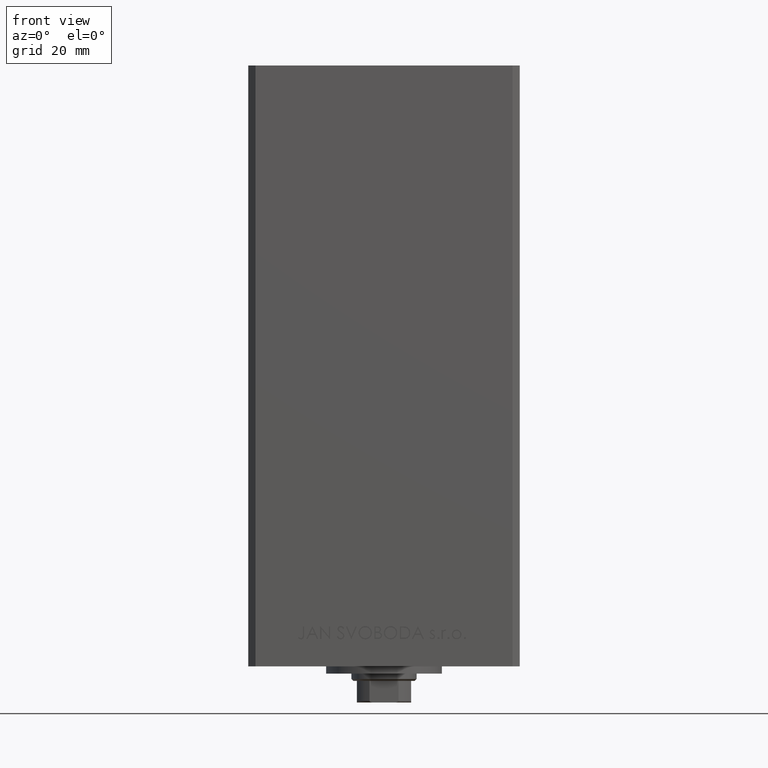
[diagram: clean part render]
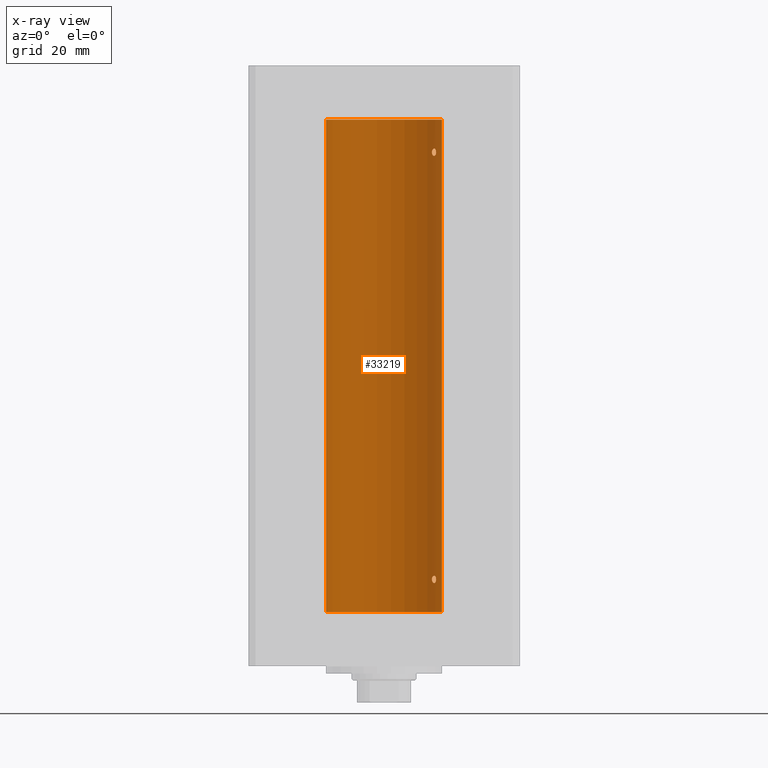
[diagram: x-ray — body ghosted, one internal face saturated and labeled with its STEP entity id]
A machine part, front view, then the same camera in x-ray: the body is ghosted and one INTERNAL B-rep face — a face not visible from any outside direction — is saturated and labeled: STEP entity #33219.
In plain terms, the highlighted cylindrical surface (partial cylindrical patch) has radius 16 mm, axis along (-0, -0, -1).
Its self-contained STEP definition (entity closure, byte-faithful):
#257 = CARTESIAN_POINT ( 'NONE',  ( 14.17516445690067606, 7.421373518623913590, 126.1736956655494453 ) ) ;
#260 = ORIENTED_EDGE ( 'NONE', *, *, #34260, .T. ) ;
#349 = CARTESIAN_POINT ( 'NONE',  ( 14.17516445690067428, 7.421373518623910037, 8.173695665549439937 ) ) ;
#935 = DIRECTION ( 'NONE',  ( -0.000000000000000000, -0.000000000000000000, -1.000000000000000000 ) ) ;
#1839 = CARTESIAN_POINT ( 'NONE',  ( 14.38749456993875953, 6.999999999998769873, 8.999999999999467093 ) ) ;
#2170 = ORIENTED_EDGE ( 'NONE', *, *, #10915, .F. ) ;
#2309 = CARTESIAN_POINT ( 'NONE',  ( 14.31615587311060445, 7.145052533203043232, 8.462698705274526390 ) ) ;
#2651 = CARTESIAN_POINT ( 'NONE',  ( 16.00000000000000000, 1.959434878635765131E-15, 136.0000000000000000 ) ) ;
#2856 = CARTESIAN_POINT ( 'NONE',  ( 13.32447566991143795, 8.857922402414491359, 127.5314381199038678 ) ) ;
#3999 = CARTESIAN_POINT ( 'NONE',  ( 14.11701305531884465, 7.531808851198022126, 126.1073667830906686 ) ) ;
#4734 = CARTESIAN_POINT ( 'NONE',  ( 14.38374727663543062, 7.007716049903079281, 126.8576079294365400 ) ) ;
#4819 = CARTESIAN_POINT ( 'NONE',  ( 13.22875655532295447, 8.999999999999998224, 8.999999999999994671 ) ) ;
#4921 = VERTEX_POINT ( 'NONE', #48324 ) ;
#4969 = CARTESIAN_POINT ( 'NONE',  ( 13.25010819131476048, 8.968783812673565947, 126.7171986622837636 ) ) ;
#5234 = AXIS2_PLACEMENT_3D ( 'NONE', #21053, #40233, #47472 ) ;
#5293 = CARTESIAN_POINT ( 'NONE',  ( 13.22875655532296157, 9.000000000000000000, 8.857026260935734641 ) ) ;
#6584 = CARTESIAN_POINT ( 'NONE',  ( 14.31678893103185679, 7.143775209822727845, 127.5347800480706724 ) ) ;
#6625 = ORIENTED_EDGE ( 'NONE', *, *, #8065, .F. ) ;
#6668 = DIRECTION ( 'NONE',  ( -1.000000000000000000, 0.000000000000000000, 0.000000000000000000 ) ) ;
#7133 = DIRECTION ( 'NONE',  ( -0.000000000000000000, -0.000000000000000000, -1.000000000000000000 ) ) ;
#7161 = CARTESIAN_POINT ( 'NONE',  ( -16.00000000000000000, 0.000000000000000000, 0.000000000000000000 ) ) ;
#7332 = CARTESIAN_POINT ( 'NONE',  ( 14.27601081693604357, 7.225489892961959981, 127.6464466749832383 ) ) ;
#7711 = CARTESIAN_POINT ( 'NONE',  ( 14.38749456993875775, 6.999999999998772537, 126.9999999999994742 ) ) ;
#8065 = EDGE_CURVE ( 'NONE', #20333, #22136, #37971, .T. ) ;
#8217 = CARTESIAN_POINT ( 'NONE',  ( 14.31615587311060445, 7.145052533203036127, 126.4626987052745193 ) ) ;
#9056 = CARTESIAN_POINT ( 'NONE',  ( 13.32447566991143439, 8.857922402414480700, 9.531438119903825168 ) ) ;
#9305 = CARTESIAN_POINT ( 'NONE',  ( 14.31678893103186390, 7.143775209822729622, 9.534780048070684799 ) ) ;
#9535 = CARTESIAN_POINT ( 'NONE',  ( 14.38749456993875953, 6.999999999998769873, 8.999999999999467093 ) ) ;
#10649 = DIRECTION ( 'NONE',  ( -0.000000000000000000, -0.000000000000000000, -1.000000000000000000 ) ) ;
#10714 = VERTEX_POINT ( 'NONE', #41489 ) ;
#10915 = EDGE_CURVE ( 'NONE', #40252, #10714, #29386, .T. ) ;
#11245 = ORIENTED_EDGE ( 'NONE', *, *, #23340, .F. ) ;
#11654 = ORIENTED_EDGE ( 'NONE', *, *, #36621, .F. ) ;
#11908 = VERTEX_POINT ( 'NONE', #7161 ) ;
#11958 = CARTESIAN_POINT ( 'NONE',  ( 13.32443414199768306, 8.857985377928109472, 126.4686058303161360 ) ) ;
#12137 = EDGE_LOOP ( 'NONE', ( #2170, #15397 ) ) ;
#12689 = CARTESIAN_POINT ( 'NONE',  ( 14.36932461189096522, 7.037242368448795915, 126.7207139776694333 ) ) ;
#13203 = CIRCLE ( 'NONE', #5234, 16.00000000000000000 ) ;
#13298 = CARTESIAN_POINT ( 'NONE',  ( 13.22875655532295447, 8.999999999999998224, 8.999999999999994671 ) ) ;
#15047 = VERTEX_POINT ( 'NONE', #39042 ) ;
#15397 = ORIENTED_EDGE ( 'NONE', *, *, #31723, .F. ) ;
#15454 = CARTESIAN_POINT ( 'NONE',  ( 14.27574973237575229, 7.225997637813494912, 126.3530782107463466 ) ) ;
#16269 = CARTESIAN_POINT ( 'NONE',  ( 13.37714181818049575, 8.778635597591465611, 8.359554766746297716 ) ) ;
#16517 = CARTESIAN_POINT ( 'NONE',  ( 13.92009581174526822, 7.889943515799717311, 7.998460909213807035 ) ) ;
#16543 = CARTESIAN_POINT ( 'NONE',  ( 14.37260515874679534, 7.030802976542521954, 9.282431798581109561 ) ) ;
#16693 = B_SPLINE_CURVE_WITH_KNOTS ( 'NONE', 3,
 ( #26277, #41486, #22786, #6584, #7332, #30257, #26512, #19051, #21798, #37002, #2856, #18052, #33254, #48457 ),
 .UNSPECIFIED., .F., .F.,
 ( 4, 2, 2, 2, 2, 2, 4 ),
 ( 0.003377516961122436958, 0.003798778705083865476, 0.004220040449045293560, 0.005062563936968100288, 0.005905087424890907016, 0.006326349168852314284, 0.006747610912813719816 ),
 .UNSPECIFIED. ) ;
#17026 = CARTESIAN_POINT ( 'NONE',  ( 14.12440581436493225, 7.519967855344579455, 9.916845667547992349 ) ) ;
#18052 = CARTESIAN_POINT ( 'NONE',  ( 13.25022586032983973, 8.968609469449800642, 127.2832896389628985 ) ) ;
#18139 = CARTESIAN_POINT ( 'NONE',  ( 0.000000000000000000, 0.000000000000000000, 136.0000000000000000 ) ) ;
#18720 = EDGE_CURVE ( 'NONE', #4921, #25609, #22767, .T. ) ;
#19051 = CARTESIAN_POINT ( 'NONE',  ( 13.70635209652260400, 8.259251269739737111, 127.9961002086728570 ) ) ;
#19205 = CARTESIAN_POINT ( 'NONE',  ( 14.35867515080208001, 7.058999333127632170, 126.6544211985381452 ) ) ;
#19694 = CARTESIAN_POINT ( 'NONE',  ( 14.38749456993875775, 6.999999999998772537, 126.9999999999994742 ) ) ;
#19876 = LINE ( 'NONE', #35065, #34275 ) ;
#20179 = CARTESIAN_POINT ( 'NONE',  ( 13.77746685470184218, 8.136441676695669756, 126.0017131429554667 ) ) ;
#20199 = CARTESIAN_POINT ( 'NONE',  ( 13.22875655532295802, 8.999999999999996447, 127.0000000000000000 ) ) ;
#20333 = VERTEX_POINT ( 'NONE', #20199 ) ;
#21053 = CARTESIAN_POINT ( 'NONE',  ( 0.000000000000000000, 0.000000000000000000, 0.000000000000000000 ) ) ;
#21500 = CARTESIAN_POINT ( 'NONE',  ( 14.35867515080208356, 7.058999333127636611, 8.654421198538130966 ) ) ;
#21798 = CARTESIAN_POINT ( 'NONE',  ( 13.55739033881264888, 8.499771822136688471, 127.9029833364133140 ) ) ;
#22136 = VERTEX_POINT ( 'NONE', #7711 ) ;
#22767 = CIRCLE ( 'NONE', #45857, 16.00000000000000000 ) ;
#22786 = CARTESIAN_POINT ( 'NONE',  ( 14.37260515874679001, 7.030802976542522842, 127.2824317985811149 ) ) ;
#23184 = VECTOR ( 'NONE', #7133, 1000.000000000000000 ) ;
#23295 = DIRECTION ( 'NONE',  ( -0.000000000000000000, 0.000000000000000000, 1.000000000000000000 ) ) ;
#23340 = EDGE_CURVE ( 'NONE', #15047, #11908, #13203, .T. ) ;
#23427 = CARTESIAN_POINT ( 'NONE',  ( 14.38749456993829767, 7.000000000000029310, 126.9292911095187577 ) ) ;
#23923 = CARTESIAN_POINT ( 'NONE',  ( 13.37714181818049752, 8.778635597591465611, 126.3595547667463137 ) ) ;
#24007 = CARTESIAN_POINT ( 'NONE',  ( 13.70633586603034715, 8.255576010093811590, 8.025328610501505366 ) ) ;
#24517 = CARTESIAN_POINT ( 'NONE',  ( 14.38749456993835807, 6.999999999999894307, 9.141106977037484427 ) ) ;
#25461 = EDGE_LOOP ( 'NONE', ( #6625, #11654 ) ) ;
#25609 = VERTEX_POINT ( 'NONE', #47741 ) ;
#26277 = CARTESIAN_POINT ( 'NONE',  ( 14.38749456993875775, 6.999999999998772537, 126.9999999999994742 ) ) ;
#26512 = CARTESIAN_POINT ( 'NONE',  ( 13.98853479819183043, 7.771757428685177160, 128.0036593920347059 ) ) ;
#27162 = CARTESIAN_POINT ( 'NONE',  ( 13.92009581174527000, 7.889943515799715534, 125.9984609092137617 ) ) ;
#27252 = CARTESIAN_POINT ( 'NONE',  ( 13.32443414199768839, 8.857985377928104143, 8.468605830316136007 ) ) ;
#27975 = CARTESIAN_POINT ( 'NONE',  ( 13.77746685470184040, 8.136441676695669756, 8.001713142955473757 ) ) ;
#29386 = B_SPLINE_CURVE_WITH_KNOTS ( 'NONE', 3,
 ( #4819, #5293, #35212, #27252, #16269, #42461, #35451, #24007, #27975, #16517, #46936, #34486, #349, #40182, #2309, #21500, #47670, #43696, #32946, #9535 ),
 .UNSPECIFIED., .F., .F.,
 ( 4, 2, 2, 2, 2, 2, 2, 2, 2, 4 ),
 ( 0.000000000000000000, 0.0004221896201403055413, 0.0008443792402806110826, 0.001266568860420916624, 0.001688758480561222165, 0.002110948100701527490, 0.002533137720841833248, 0.002955327340982138572, 0.003166422151052288633, 0.003377516961122438259 ),
 .UNSPECIFIED. ) ;
#29605 = CYLINDRICAL_SURFACE ( 'NONE', #39002, 16.00000000000000000 ) ;
#30257 = CARTESIAN_POINT ( 'NONE',  ( 14.12440581436493048, 7.519967855344577679, 127.9168456675479888 ) ) ;
#30905 = CARTESIAN_POINT ( 'NONE',  ( 13.22875655532295802, 8.999999999999996447, 127.0000000000000000 ) ) ;
#31563 = ORIENTED_EDGE ( 'NONE', *, *, #35165, .F. ) ;
#31723 = EDGE_CURVE ( 'NONE', #10714, #40252, #47966, .T. ) ;
#32241 = CARTESIAN_POINT ( 'NONE',  ( 13.98853479819183043, 7.771757428685174496, 10.00365939203466681 ) ) ;
#32946 = CARTESIAN_POINT ( 'NONE',  ( 14.38749456993828879, 7.000000000000026645, 8.929291109518763037 ) ) ;
#33219 = ADVANCED_FACE ( 'NONE', ( #44810, #36604, #48299 ), #29605, .F. ) ;
#33254 = CARTESIAN_POINT ( 'NONE',  ( 13.22875655532295625, 8.999999999999994671, 127.1426595155012933 ) ) ;
#34102 = ORIENTED_EDGE ( 'NONE', *, *, #18720, .T. ) ;
#34260 = EDGE_CURVE ( 'NONE', #25609, #11908, #19876, .T. ) ;
#34275 = VECTOR ( 'NONE', #935, 1000.000000000000000 ) ;
#34486 = CARTESIAN_POINT ( 'NONE',  ( 14.11701305531884287, 7.531808851198022126, 8.107366783090686368 ) ) ;
#34884 = CARTESIAN_POINT ( 'NONE',  ( 13.56526576050684341, 8.485384079562173554, 126.1169905381311054 ) ) ;
#35065 = CARTESIAN_POINT ( 'NONE',  ( -16.00000000000000000, 0.000000000000000000, 136.0000000000000000 ) ) ;
#35165 = EDGE_CURVE ( 'NONE', #4921, #15047, #40533, .T. ) ;
#35212 = CARTESIAN_POINT ( 'NONE',  ( 13.25010819131475159, 8.968783812673564171, 8.717198662283735189 ) ) ;
#35451 = CARTESIAN_POINT ( 'NONE',  ( 13.56526576050683452, 8.485384079562178883, 8.116990538131117816 ) ) ;
#35734 = CARTESIAN_POINT ( 'NONE',  ( 13.70635209652260222, 8.259251269739738888, 9.996100208672867637 ) ) ;
#35980 = CARTESIAN_POINT ( 'NONE',  ( 14.27601081693604712, 7.225489892961965310, 9.646446674983275571 ) ) ;
#36440 = CARTESIAN_POINT ( 'NONE',  ( 13.22875655532295447, 8.999999999999998224, 8.999999999999994671 ) ) ;
#36604 = FACE_BOUND ( 'NONE', #25461, .T. ) ;
#36621 = EDGE_CURVE ( 'NONE', #22136, #20333, #16693, .T. ) ;
#37002 = CARTESIAN_POINT ( 'NONE',  ( 13.37722806521492913, 8.778496895713761461, 127.6404922157021673 ) ) ;
#37971 = B_SPLINE_CURVE_WITH_KNOTS ( 'NONE', 3,
 ( #30905, #38144, #4969, #11958, #23923, #39111, #34884, #46121, #20179, #27162, #42376, #3999, #257, #15454, #8217, #19205, #12689, #4734, #23427, #19694 ),
 .UNSPECIFIED., .F., .F.,
 ( 4, 2, 2, 2, 2, 2, 2, 2, 2, 4 ),
 ( 0.000000000000000000, 0.0004221896201403046197, 0.0008443792402806092395, 0.001266568860420913805, 0.001688758480561218479, 0.002110948100701523153, 0.002533137720841827610, 0.002955327340982132501, 0.003166422151052284729, 0.003377516961122436958 ),
 .UNSPECIFIED. ) ;
#38144 = CARTESIAN_POINT ( 'NONE',  ( 13.22875655532295447, 8.999999999999998224, 126.8570262609357826 ) ) ;
#39002 = AXIS2_PLACEMENT_3D ( 'NONE', #18139, #10649, #6668 ) ;
#39042 = CARTESIAN_POINT ( 'NONE',  ( 16.00000000000000000, 1.959434878635765131E-15, 0.000000000000000000 ) ) ;
#39111 = CARTESIAN_POINT ( 'NONE',  ( 13.49787029139620920, 8.591848682074020971, 126.1838145871425922 ) ) ;
#39469 = CARTESIAN_POINT ( 'NONE',  ( 13.25022586032984329, 8.968609469449802418, 9.283289638962903823 ) ) ;
#40182 = CARTESIAN_POINT ( 'NONE',  ( 14.27574973237574696, 7.225997637813494023, 8.353078210746339494 ) ) ;
#40233 = DIRECTION ( 'NONE',  ( -0.000000000000000000, 0.000000000000000000, 1.000000000000000000 ) ) ;
#40252 = VERTEX_POINT ( 'NONE', #36440 ) ;
#40533 = LINE ( 'NONE', #2651, #23184 ) ;
#41486 = CARTESIAN_POINT ( 'NONE',  ( 14.38749456993835807, 6.999999999999901412, 127.1411069770375093 ) ) ;
#41489 = CARTESIAN_POINT ( 'NONE',  ( 14.38749456993875953, 6.999999999998769873, 8.999999999999467093 ) ) ;
#41750 = CARTESIAN_POINT ( 'NONE',  ( 0.000000000000000000, 0.000000000000000000, 136.0000000000000000 ) ) ;
#42376 = CARTESIAN_POINT ( 'NONE',  ( 13.98799506618804855, 7.768796316246572964, 126.0189078186199083 ) ) ;
#42461 = CARTESIAN_POINT ( 'NONE',  ( 13.49787029139620920, 8.591848682074017418, 8.183814587142569152 ) ) ;
#42482 = DIRECTION ( 'NONE',  ( 1.000000000000000000, 0.000000000000000000, 0.000000000000000000 ) ) ;
#42658 = EDGE_LOOP ( 'NONE', ( #31563, #34102, #260, #11245 ) ) ;
#43696 = CARTESIAN_POINT ( 'NONE',  ( 14.38374727663542707, 7.007716049903074840, 8.857607929436484895 ) ) ;
#43965 = CARTESIAN_POINT ( 'NONE',  ( 13.55739033881265065, 8.499771822136686694, 9.902983336413296200 ) ) ;
#44810 = FACE_OUTER_BOUND ( 'NONE', #42658, .T. ) ;
#45857 = AXIS2_PLACEMENT_3D ( 'NONE', #41750, #23295, #42482 ) ;
#46121 = CARTESIAN_POINT ( 'NONE',  ( 13.70633586603035958, 8.255576010093799155, 126.0253286105015320 ) ) ;
#46716 = CARTESIAN_POINT ( 'NONE',  ( 13.37722806521492025, 8.778496895713756132, 9.640492215702138878 ) ) ;
#46936 = CARTESIAN_POINT ( 'NONE',  ( 13.98799506618804855, 7.768796316246572964, 8.018907818619863903 ) ) ;
#47450 = CARTESIAN_POINT ( 'NONE',  ( 13.22875655532295625, 9.000000000000000000, 9.142659515501296852 ) ) ;
#47472 = DIRECTION ( 'NONE',  ( 1.000000000000000000, 0.000000000000000000, 0.000000000000000000 ) ) ;
#47670 = CARTESIAN_POINT ( 'NONE',  ( 14.36932461189096877, 7.037242368448794139, 8.720713977669424466 ) ) ;
#47741 = CARTESIAN_POINT ( 'NONE',  ( -16.00000000000000000, 0.000000000000000000, 136.0000000000000000 ) ) ;
#47966 = B_SPLINE_CURVE_WITH_KNOTS ( 'NONE', 3,
 ( #1839, #24517, #16543, #9305, #35980, #17026, #32241, #35734, #43965, #46716, #9056, #39469, #47450, #13298 ),
 .UNSPECIFIED., .F., .F.,
 ( 4, 2, 2, 2, 2, 2, 4 ),
 ( 0.003377516961122438259, 0.003798778705083848996, 0.004220040449045259733, 0.005062563936968083808, 0.005905087424890908751, 0.006326349168852319488, 0.006747610912813730225 ),
 .UNSPECIFIED. ) ;
#48299 = FACE_BOUND ( 'NONE', #12137, .T. ) ;
#48324 = CARTESIAN_POINT ( 'NONE',  ( 16.00000000000000000, 1.959434878635765131E-15, 136.0000000000000000 ) ) ;
#48457 = CARTESIAN_POINT ( 'NONE',  ( 13.22875655532295802, 8.999999999999996447, 127.0000000000000000 ) ) ;